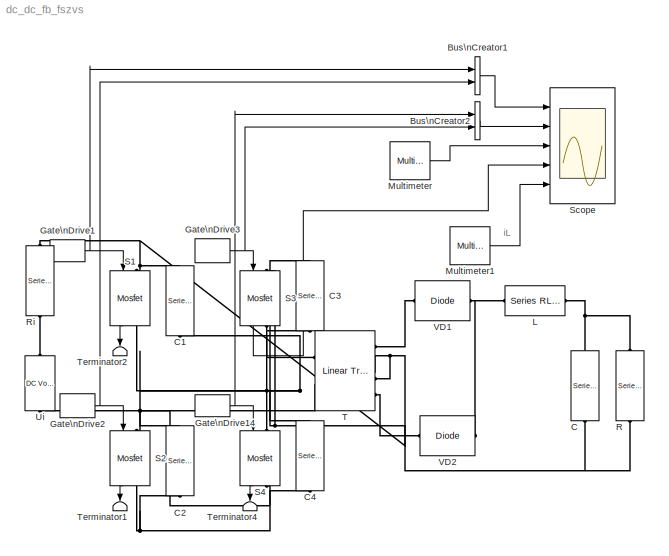
MODEL dc_dc_fb_fszvs
KIND model
BLOCK [BusCreator] Bus\nCreator1
  DialogController = Simulink.DDGSource_Bus
  DisplayOption = bar
  Inputs = 2
  Ports = [2, 1]
BLOCK [BusCreator] Bus\nCreator2
  DialogController = Simulink.DDGSource_Bus
  DisplayOption = bar
  Inputs = 2
  Ports = [2, 1]
BLOCK [Reference] C  REF=powerlib/Elements/Series RLC Branch
  Capacitance = 1e-4
  Inductance = 0
  LConnTagsString = __new0
  LeftPortType = p1
  Measurements = None
  PhysicalDomain = powersysdomain
  Ports = [0, 0, 0, 0, 0, 1, 1]
  RConnTagsString = __new0
  Resistance = 0
  RightPortType = p1
  SourceBlock = powerlib/Elements/Series RLC Branch
  SourceType = Series RLC Branch
  SubClassName = unknown
BLOCK [Reference] C1  REF=powerlib/Elements/Series RLC Branch
  Capacitance = 1e-7
  Inductance = 0
  LConnTagsString = __new0
  LeftPortType = p1
  Measurements = None
  PhysicalDomain = powersysdomain
  Ports = [0, 0, 0, 0, 0, 1, 1]
  RConnTagsString = __new0
  Resistance = 0
  RightPortType = p1
  SourceBlock = powerlib/Elements/Series RLC Branch
  SourceType = Series RLC Branch
  SubClassName = unknown
BLOCK [Reference] C2  REF=powerlib/Elements/Series RLC Branch
  Capacitance = 1e-7
  Inductance = 0
  LConnTagsString = __new0
  LeftPortType = p1
  Measurements = None
  PhysicalDomain = powersysdomain
  Ports = [0, 0, 0, 0, 0, 1, 1]
  RConnTagsString = __new0
  Resistance = 0
  RightPortType = p1
  SourceBlock = powerlib/Elements/Series RLC Branch
  SourceType = Series RLC Branch
  SubClassName = unknown
BLOCK [Reference] C3  REF=powerlib/Elements/Series RLC Branch
  Capacitance = 1e-7
  Inductance = 0
  LConnTagsString = __new0
  LeftPortType = p1
  Measurements = None
  PhysicalDomain = powersysdomain
  Ports = [0, 0, 0, 0, 0, 1, 1]
  RConnTagsString = __new0
  Resistance = 0
  RightPortType = p1
  SourceBlock = powerlib/Elements/Series RLC Branch
  SourceType = Series RLC Branch
  SubClassName = unknown
BLOCK [Reference] C4  REF=powerlib/Elements/Series RLC Branch
  Capacitance = 1e-7
  Inductance = 0
  LConnTagsString = __new0
  LeftPortType = p1
  Measurements = None
  PhysicalDomain = powersysdomain
  Ports = [0, 0, 0, 0, 0, 1, 1]
  RConnTagsString = __new0
  Resistance = 0
  RightPortType = p1
  SourceBlock = powerlib/Elements/Series RLC Branch
  SourceType = Series RLC Branch
  SubClassName = unknown
BLOCK [DiscretePulseGenerator] Gate\nDrive1
  Period = 50e-6
  Ports = [0, 1]
  PulseType = Time based
  PulseWidth = 47
BLOCK [DiscretePulseGenerator] Gate\nDrive14
  Period = 50e-6
  PhaseDelay = 5e-6
  Ports = [0, 1]
  PulseType = Time based
  PulseWidth = 47
BLOCK [DiscretePulseGenerator] Gate\nDrive2
  Period = 50e-6
  PhaseDelay = 25e-6
  Ports = [0, 1]
  PulseType = Time based
  PulseWidth = 47
BLOCK [DiscretePulseGenerator] Gate\nDrive3
  Period = 50e-6
  PhaseDelay = 30e-6
  Ports = [0, 1]
  PulseType = Time based
  PulseWidth = 47
BLOCK [Reference] L  REF=powerlib/Elements/Series RLC Branch
  Capacitance = inf
  Inductance = 5e-5
  LConnTagsString = __new0
  LeftPortType = p1
  Measurements = Branch voltage and current
  PhysicalDomain = powersysdomain
  Ports = [0, 0, 0, 0, 0, 1, 1]
  RConnTagsString = __new0
  Resistance = 0
  RightPortType = p1
  SourceBlock = powerlib/Elements/Series RLC Branch
  SourceType = Series RLC Branch
  SubClassName = unknown
BLOCK [Reference] Multimeter  REF=powerlib/Measurements/Multimeter
  AxesSetting = [0,0.1,-100,100]
  Display = 0
  Gain = [1 1]
  L = 10
  OutputType = Complex
  PSBOutputType = 1
  PSBequivalent = 0
  PhasorSimulation = off
  Ports = [0, 1]
  SavedBlockNames = -11
  ShowPortLabels = on
  SourceBlock = powerlib/Measurements/Multimeter
  SourceType = MultimeterPSB
  sel = [3 7]
  yselected = {'Uw1: T','Iw1: T'};
BLOCK [Reference] Multimeter1  REF=powerlib/Measurements/Multimeter
  AxesSetting = [0,0.1,-100,100]
  Display = 0
  Gain = 1
  L = 10
  OutputType = Complex
  PSBOutputType = 1
  PSBequivalent = 0
  PhasorSimulation = off
  Ports = [0, 1]
  SavedBlockNames = -11
  ShowPortLabels = on
  SourceBlock = powerlib/Measurements/Multimeter
  SourceType = MultimeterPSB
  sel = 6
  yselected = {'Ib: L'};
BLOCK [Reference] R  REF=powerlib/Elements/Series RLC Branch
  Capacitance = inf
  Inductance = 0
  LConnTagsString = __new0
  LeftPortType = p1
  Measurements = Branch voltage
  PhysicalDomain = powersysdomain
  Ports = [0, 0, 0, 0, 0, 1, 1]
  RConnTagsString = __new0
  Resistance = 0.4
  RightPortType = p1
  SourceBlock = powerlib/Elements/Series RLC Branch
  SourceType = Series RLC Branch
  SubClassName = unknown
BLOCK [Reference] Ri  REF=powerlib/Elements/Series RLC Branch
  Capacitance = inf
  Inductance = 0
  LConnTagsString = __new0
  LeftPortType = p1
  Measurements = None
  PhysicalDomain = powersysdomain
  Ports = [0, 0, 0, 0, 0, 1, 1]
  RConnTagsString = __new0
  Resistance = .01
  RightPortType = p1
  SourceBlock = powerlib/Elements/Series RLC Branch
  SourceType = Series RLC Branch
  SubClassName = unknown
BLOCK [Reference] S1  REF=powerlib/Power\nElectronics/Mosfet
  Cs = 1e-8
  IC = 0
  Lon = 1e-9
  Measurements = on
  Ports = [1, 1, 0, 0, 0, 1, 1]
  Rd = 0.05
  Ron = 0.05
  Rs = 100
  ShowPortLabels = on
  SourceBlock = powerlib/Power\nElectronics/Mosfet
  SourceType = Mosfet
BLOCK [Reference] S2  REF=powerlib/Power\nElectronics/Mosfet
  Cs = 1e-8
  IC = 0
  Lon = 1e-9
  Measurements = on
  Ports = [1, 1, 0, 0, 0, 1, 1]
  Rd = 0.05
  Ron = 0.05
  Rs = 100
  ShowPortLabels = on
  SourceBlock = powerlib/Power\nElectronics/Mosfet
  SourceType = Mosfet
BLOCK [Reference] S3  REF=powerlib/Power\nElectronics/Mosfet
  Cs = 1e-8
  IC = 0
  Lon = 1e-9
  Measurements = on
  Ports = [1, 1, 0, 0, 0, 1, 1]
  Rd = 0.05
  Ron = 0.05
  Rs = 100
  ShowPortLabels = on
  SourceBlock = powerlib/Power\nElectronics/Mosfet
  SourceType = Mosfet
BLOCK [Reference] S4  REF=powerlib/Power\nElectronics/Mosfet
  Cs = 1e-8
  IC = 0
  Lon = 1e-9
  Measurements = on
  Ports = [1, 1, 0, 0, 0, 1, 1]
  Rd = 0.05
  Ron = 0.05
  Rs = 100
  ShowPortLabels = on
  SourceBlock = powerlib/Power\nElectronics/Mosfet
  SourceType = Mosfet
BLOCK [Scope] Scope
  DataFormat = StructureWithTime
  LimitDataPoints = off
  NumInputPorts = 5
  Ports = [5]
  SampleTime = 1e-7
  TimeRange = 0.0001
  YMax = 1.5~1.5~100~60~40
  YMin = -0.5~-0.5~-100~-20~0
  ZoomMode = xonly
BLOCK [Reference] T  REF=powerlib/Elements/Linear Transformer
  LConnTagsString = a|b
  LeftPortType = p1
  Measurements = All voltages and currents
  NominalPower = [500 20000 ]
  PhysicalDomain = powersysdomain
  Ports = [0, 0, 0, 0, 0, 2, 4]
  RConnTagsString = A|B|C|D
  RightPortType = p1
  RmLm = [ 500 20 ]
  SourceBlock = powerlib/Elements/Linear Transformer
  SourceType = Linear Transformer
  SubClassName = unknown
  ThreeWindings = on
  winding1 = [ 100  0.002  0.02 ]
  winding2 = [ 50  0.002  0.02 ]
  winding3 = [ 50 0.002 0.02 ]
BLOCK [Terminator] Terminator1
BLOCK [Terminator] Terminator2
BLOCK [Terminator] Terminator4
BLOCK [Reference] Ui  REF=powerlib/Electrical\nSources/DC Voltage Source
  Amplitude = 50
  Measurements = None
  Ports = [0, 0, 0, 0, 0, 1, 1]
  ShowPortLabels = on
  SourceBlock = powerlib/Electrical\nSources/DC Voltage Source
  SourceType = DC Voltage Source
BLOCK [Reference] VD1  REF=powerlib/Power\nElectronics/Diode
  Cs = 1e-9
  IC = 0
  Lon = 0
  Measurements = off
  Ports = [0, 0, 0, 0, 0, 1, 1]
  Ron = 0.01
  Rs = 100
  ShowPortLabels = on
  SourceBlock = powerlib/Power\nElectronics/Diode
  SourceType = Diode
  Vf = 0.8
BLOCK [Reference] VD2  REF=powerlib/Power\nElectronics/Diode
  Cs = 1e-9
  IC = 0
  Lon = 0
  Measurements = off
  Ports = [0, 0, 0, 0, 0, 1, 1]
  Ron = 0.01
  Rs = 100
  ShowPortLabels = on
  SourceBlock = powerlib/Power\nElectronics/Diode
  SourceType = Diode
  Vf = 0.8
ANNOTATION (root): iL
LINE Bus\nCreator1:1 -> Scope:1
LINE Bus\nCreator2:1 -> Scope:2
NET Gate\nDrive14:1 -> Bus\nCreator2:1, S4:1
NET Gate\nDrive1:1 -> Bus\nCreator1:1, S1:1
NET Gate\nDrive2:1 -> Bus\nCreator1:2, S2:1
NET Gate\nDrive3:1 -> Bus\nCreator2:2, S3:1
LINE Multimeter1:1 -> Scope:5
LINE Multimeter:1 -> Scope:3
LINE S1:1 -> Terminator2:1
LINE S2:1 -> Terminator1:1
LINE S3:1 -> Scope:4
LINE S4:1 -> Terminator4:1
PNET net1: C1:LConn1 -- C2:RConn1 -- S1:RConn1 -- S2:LConn1 -- T:LConn2
PNET net2: C1:RConn1 -- C3:RConn1 -- Ri:RConn1 -- S1:LConn1 -- S3:LConn1
PNET net3: C2:LConn1 -- C4:LConn1 -- S2:RConn1 -- S4:RConn1 -- Ui:LConn1
PNET net4: C3:LConn1 -- C4:RConn1 -- S3:RConn1 -- S4:LConn1 -- T:LConn1
PNET net5: C:LConn1 -- R:RConn1 -- T:RConn2 -- T:RConn3
PNET net6: C:RConn1 -- L:RConn1 -- R:LConn1
PNET net7: L:LConn1 -- VD1:RConn1 -- VD2:RConn1
PLINE Ri:LConn1 -- Ui:RConn1
PLINE T:RConn1 -- VD1:LConn1
PLINE T:RConn4 -- VD2:LConn1
note: NET lines group one-source signal fan-out (src -> all destinations, sorted); 1:1 wires keep LINE; PNET lines group multi-terminal physical nets as a canonical sorted terminal list (undirected conserving connections); 2-terminal nets keep the pairwise PLINE form
